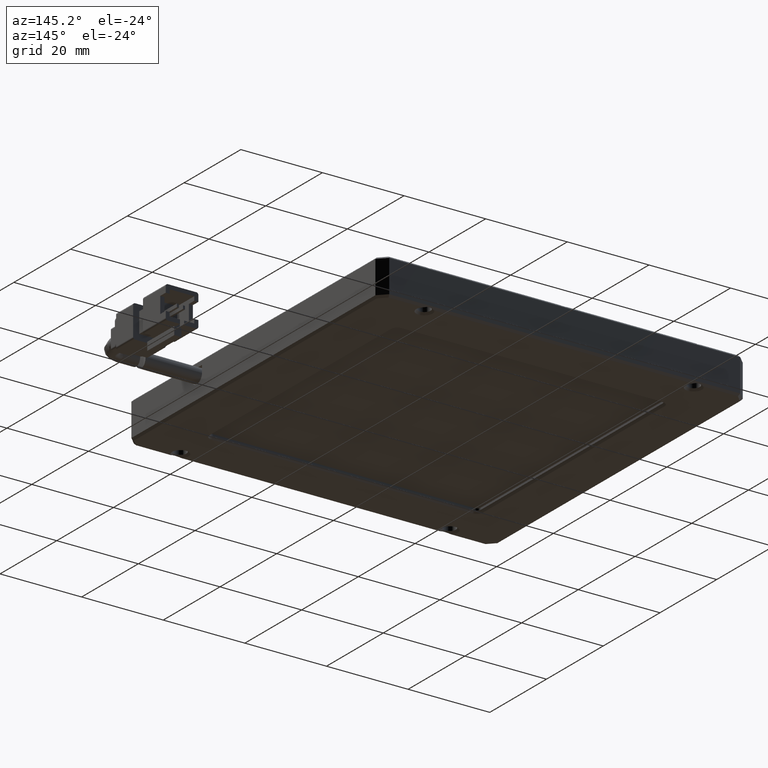
[diagram: clean part render]
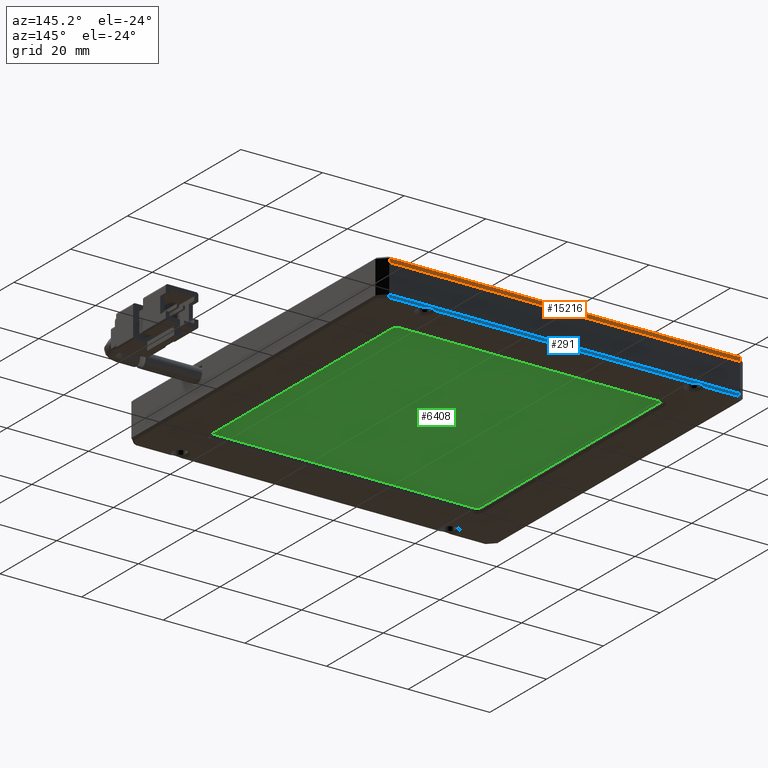
[diagram: same view with three faces highlighted in distinct colors, each labeled with its STEP entity id]
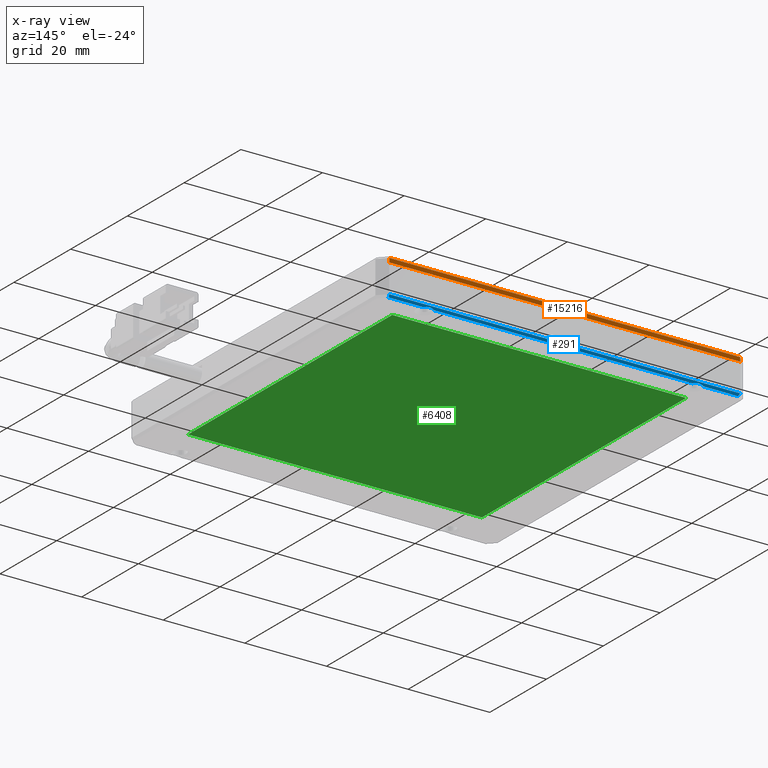
[diagram: x-ray of the same camera — body ghosted, the three highlighted faces saturated]
A machine part, auxiliary view with three faces highlighted in distinct colors.
The next image is the same camera in x-ray (body ghosted, the three faces saturated) — at least one of them is partly hidden behind the body in this view.
Their STEP definitions:

[orange] entity #15216 — the highlighted planar face has unit normal (0, -1, 0).
#2147 = FACE_OUTER_BOUND ( 'NONE', #8830, .T. ) ;
#2522 = EDGE_CURVE ( 'NONE', #14939, #5527, #3638, .T. ) ;
#2695 = DIRECTION ( 'NONE',  ( 0.0000000000000000000, -1.000000000000000000, 0.0000000000000000000 ) ) ;
#3199 = VECTOR ( 'NONE', #8888, 1000.000000000000000 ) ;
#3551 = VERTEX_POINT ( 'NONE', #8979 ) ;
#3638 = LINE ( 'NONE', #8705, #3199 ) ;
#3874 = ORIENTED_EDGE ( 'NONE', *, *, #8291, .T. ) ;
#4049 = CARTESIAN_POINT ( 'NONE',  ( 10.92074074074074600, 72.93999999999999800, 6.000000000000000900 ) ) ;
#4440 = EDGE_CURVE ( 'NONE', #5527, #3551, #12041, .T. ) ;
#5485 = PLANE ( 'NONE',  #7320 ) ;
#5527 = VERTEX_POINT ( 'NONE', #15553 ) ;
#5786 = DIRECTION ( 'NONE',  ( 1.000000000000000000, -0.0000000000000000000, 0.0000000000000000000 ) ) ;
#7320 = AXIS2_PLACEMENT_3D ( 'NONE', #11081, #2695, #12448 ) ;
#7853 = LINE ( 'NONE', #14061, #15171 ) ;
#8291 = EDGE_CURVE ( 'NONE', #14939, #9749, #9532, .T. ) ;
#8496 = ORIENTED_EDGE ( 'NONE', *, *, #4440, .F. ) ;
#8705 = CARTESIAN_POINT ( 'NONE',  ( -77.07925925925924600, 72.93999999999999800, 5.500000000000002700 ) ) ;
#8830 = EDGE_LOOP ( 'NONE', ( #8496, #12368, #3874, #16238 ) ) ;
#8888 = DIRECTION ( 'NONE',  ( -1.000000000000000000, -0.0000000000000000000, -0.0000000000000000000 ) ) ;
#8979 = CARTESIAN_POINT ( 'NONE',  ( -75.07925925925923100, 72.93999999999999800, 4.500000000000000000 ) ) ;
#9532 = LINE ( 'NONE', #4049, #16425 ) ;
#9749 = VERTEX_POINT ( 'NONE', #9768 ) ;
#9768 = CARTESIAN_POINT ( 'NONE',  ( 10.92074074074074600, 72.93999999999999800, 4.500000000000000900 ) ) ;
#11081 = CARTESIAN_POINT ( 'NONE',  ( -77.07925925925924600, 72.93999999999999800, 6.000000000000000900 ) ) ;
#12041 = LINE ( 'NONE', #14567, #15247 ) ;
#12368 = ORIENTED_EDGE ( 'NONE', *, *, #2522, .F. ) ;
#12448 = DIRECTION ( 'NONE',  ( 0.0000000000000000000, -0.0000000000000000000, -1.000000000000000000 ) ) ;
#14061 = CARTESIAN_POINT ( 'NONE',  ( -77.07925925925924600, 72.93999999999999800, 4.500000000000000900 ) ) ;
#14452 = DIRECTION ( 'NONE',  ( 0.0000000000000000000, -0.0000000000000000000, -1.000000000000000000 ) ) ;
#14567 = CARTESIAN_POINT ( 'NONE',  ( -75.07925925925923100, 72.93999999999999800, 6.000000000000000900 ) ) ;
#14579 = CARTESIAN_POINT ( 'NONE',  ( 10.92074074074074600, 72.93999999999999800, 5.500000000000000900 ) ) ;
#14939 = VERTEX_POINT ( 'NONE', #14579 ) ;
#15147 = DIRECTION ( 'NONE',  ( -0.0000000000000000000, -0.0000000000000000000, -1.000000000000000000 ) ) ;
#15171 = VECTOR ( 'NONE', #5786, 1000.000000000000000 ) ;
#15216 = ADVANCED_FACE ( 'NONE', ( #2147 ), #5485, .F. ) ;
#15247 = VECTOR ( 'NONE', #14452, 1000.000000000000000 ) ;
#15553 = CARTESIAN_POINT ( 'NONE',  ( -75.07925925925923100, 72.93999999999999800, 5.500000000000004400 ) ) ;
#15676 = EDGE_CURVE ( 'NONE', #3551, #9749, #7853, .T. ) ;
#16238 = ORIENTED_EDGE ( 'NONE', *, *, #15676, .F. ) ;
#16425 = VECTOR ( 'NONE', #15147, 1000.000000000000000 ) ;

[blue] entity #291 — the highlighted planar face has unit normal (0, 0.7071, -0.7071).
#291 = ADVANCED_FACE ( 'NONE', ( #12871 ), #3465, .T. ) ;
#922 = CARTESIAN_POINT ( 'NONE',  ( -65.52021781110332200, 72.77333333333335500, -2.666666666666651400 ) ) ;
#1823 = ORIENTED_EDGE ( 'NONE', *, *, #13005, .T. ) ;
#2119 = ORIENTED_EDGE ( 'NONE', *, *, #3876, .F. ) ;
#2727 = CARTESIAN_POINT ( 'NONE',  ( 10.92074074074073100, 72.93999999999999800, -2.500000000000003100 ) ) ;
#2816 = CARTESIAN_POINT ( 'NONE',  ( -64.63830070741511200, 72.77333333333335500, -2.666666666666651400 ) ) ;
#3348 = CARTESIAN_POINT ( 'NONE',  ( 0.4797821888966511400, 72.77333333333334100, -2.666666666666661200 ) ) ;
#3405 = LINE ( 'NONE', #9439, #3838 ) ;
#3465 = PLANE ( 'NONE',  #8311 ) ;
#3540 = CARTESIAN_POINT ( 'NONE',  ( 10.71363395955419900, 72.43999999999998400, -2.999999999999996000 ) ) ;
#3564 = CARTESIAN_POINT ( 'NONE',  ( 2.243616396213607500, 72.43999999999999800, -3.000000000000000000 ) ) ;
#3838 = VECTOR ( 'NONE', #17727, 1000.000000000000100 ) ;
#3876 = EDGE_CURVE ( 'NONE', #7587, #8656, #9263, .T. ) ;
#4344 = CARTESIAN_POINT ( 'NONE',  ( -77.07925925925924600, 72.43999999999999800, -3.000000000000000000 ) ) ;
#4379 = EDGE_CURVE ( 'NONE', #7741, #7928, #7606, .T. ) ;
#4482 = CARTESIAN_POINT ( 'NONE',  ( -75.07925925925923100, 72.93999999999999800, -2.500000000000000400 ) ) ;
#4704 = CARTESIAN_POINT ( 'NONE',  ( -77.07925925925924600, 72.43999999999999800, -3.000000000000000000 ) ) ;
#4812 = CARTESIAN_POINT ( 'NONE',  ( -0.4021349147320801800, 72.43999999999999800, -3.000000000000000000 ) ) ;
#5359 = VECTOR ( 'NONE', #7438, 1000.000000000000000 ) ;
#5425 = EDGE_CURVE ( 'NONE', #7741, #9958, #11019, .T. ) ;
#5553 = VECTOR ( 'NONE', #14285, 1000.000000000000000 ) ;
#5609 = ORIENTED_EDGE ( 'NONE', *, *, #10463, .F. ) ;
#5816 = CARTESIAN_POINT ( 'NONE',  ( 10.71363395955418700, 72.43999999999998400, -3.000000000000007100 ) ) ;
#6718 = VERTEX_POINT ( 'NONE', #2727 ) ;
#6854 = VERTEX_POINT ( 'NONE', #4482 ) ;
#6962 = ORIENTED_EDGE ( 'NONE', *, *, #5425, .F. ) ;
#6965 = EDGE_CURVE ( 'NONE', #7587, #9958, #10067, .T. ) ;
#7342 = VECTOR ( 'NONE', #15426, 1000.000000000000000 ) ;
#7435 = ORIENTED_EDGE ( 'NONE', *, *, #4379, .T. ) ;
#7438 = DIRECTION ( 'NONE',  ( 1.000000000000000000, -0.0000000000000000000, 0.0000000000000000000 ) ) ;
#7587 = VERTEX_POINT ( 'NONE', #3564 ) ;
#7606 = B_SPLINE_CURVE_WITH_KNOTS ( 'NONE', 3,
 ( #18108, #2816, #922, #18088 ),
 .UNSPECIFIED., .F., .F.,
 ( 4, 4 ),
 ( 0.0000000000000000000, 1.000000000000000000 ),
 .UNSPECIFIED. ) ;
#7741 = VERTEX_POINT ( 'NONE', #16401 ) ;
#7928 = VERTEX_POINT ( 'NONE', #13007 ) ;
#8258 = EDGE_LOOP ( 'NONE', ( #16829, #6962, #7435, #9626, #1823, #18074, #5609, #2119 ) ) ;
#8311 = AXIS2_PLACEMENT_3D ( 'NONE', #8924, #9057, #9162 ) ;
#8535 = DIRECTION ( 'NONE',  ( 1.000000000000000000, -0.0000000000000000000, 0.0000000000000000000 ) ) ;
#8656 = VERTEX_POINT ( 'NONE', #3540 ) ;
#8901 = VERTEX_POINT ( 'NONE', #11159 ) ;
#8924 = CARTESIAN_POINT ( 'NONE',  ( -77.07925925925924600, 72.93999999999999800, -2.499999999999999600 ) ) ;
#9057 = DIRECTION ( 'NONE',  ( 0.0000000000000000000, 0.7071067811865475700, -0.7071067811865475700 ) ) ;
#9162 = DIRECTION ( 'NONE',  ( 0.0000000000000000000, 0.7071067811865474600, 0.7071067811865474600 ) ) ;
#9263 = LINE ( 'NONE', #15410, #5553 ) ;
#9439 = CARTESIAN_POINT ( 'NONE',  ( -74.87215247807269200, 72.43999999999999800, -3.000000000000000000 ) ) ;
#9626 = ORIENTED_EDGE ( 'NONE', *, *, #16926, .F. ) ;
#9775 = LINE ( 'NONE', #16773, #17152 ) ;
#9958 = VERTEX_POINT ( 'NONE', #13035 ) ;
#10067 = B_SPLINE_CURVE_WITH_KNOTS ( 'NONE', 3,
 ( #13092, #11741, #3348, #4812 ),
 .UNSPECIFIED., .F., .F.,
 ( 4, 4 ),
 ( 0.0000000000000000000, 1.000000000000000000 ),
 .UNSPECIFIED. ) ;
#10082 = VECTOR ( 'NONE', #12704, 999.9999999999998900 ) ;
#10463 = EDGE_CURVE ( 'NONE', #8656, #6718, #16516, .T. ) ;
#11019 = LINE ( 'NONE', #4344, #7342 ) ;
#11159 = CARTESIAN_POINT ( 'NONE',  ( -74.87215247807269200, 72.43999999999998400, -3.000000000000000000 ) ) ;
#11741 = CARTESIAN_POINT ( 'NONE',  ( 1.361699292584867000, 72.77333333333334100, -2.666666666666661200 ) ) ;
#12035 = EDGE_CURVE ( 'NONE', #6854, #6718, #9775, .T. ) ;
#12704 = DIRECTION ( 'NONE',  ( 0.2810846377148155100, 0.6785983445458456700, 0.6785983445458503300 ) ) ;
#12871 = FACE_OUTER_BOUND ( 'NONE', #8258, .T. ) ;
#13005 = EDGE_CURVE ( 'NONE', #8901, #6854, #3405, .T. ) ;
#13007 = CARTESIAN_POINT ( 'NONE',  ( -66.40213491475545000, 72.43999999999999800, -3.000000000000000000 ) ) ;
#13035 = CARTESIAN_POINT ( 'NONE',  ( -0.4021349147320801800, 72.43999999999999800, -3.000000000000000000 ) ) ;
#13092 = CARTESIAN_POINT ( 'NONE',  ( 2.243616396213607500, 72.43999999999999800, -3.000000000000000000 ) ) ;
#14285 = DIRECTION ( 'NONE',  ( 1.000000000000000000, -0.0000000000000000000, 0.0000000000000000000 ) ) ;
#15410 = CARTESIAN_POINT ( 'NONE',  ( -77.07925925925924600, 72.43999999999999800, -3.000000000000000000 ) ) ;
#15426 = DIRECTION ( 'NONE',  ( 1.000000000000000000, -0.0000000000000000000, 0.0000000000000000000 ) ) ;
#15948 = LINE ( 'NONE', #4704, #5359 ) ;
#16401 = CARTESIAN_POINT ( 'NONE',  ( -63.75638360376304100, 72.43999999999999800, -3.000000000000000000 ) ) ;
#16516 = LINE ( 'NONE', #5816, #10082 ) ;
#16773 = CARTESIAN_POINT ( 'NONE',  ( -77.07925925925924600, 72.93999999999999800, -2.499999999999999600 ) ) ;
#16829 = ORIENTED_EDGE ( 'NONE', *, *, #6965, .T. ) ;
#16926 = EDGE_CURVE ( 'NONE', #8901, #7928, #15948, .T. ) ;
#17152 = VECTOR ( 'NONE', #8535, 1000.000000000000000 ) ;
#17727 = DIRECTION ( 'NONE',  ( -0.2810846377148163400, 0.6785983445458477800, 0.6785983445458477800 ) ) ;
#18074 = ORIENTED_EDGE ( 'NONE', *, *, #12035, .T. ) ;
#18088 = CARTESIAN_POINT ( 'NONE',  ( -66.40213491475545000, 72.43999999999999800, -3.000000000000000000 ) ) ;
#18108 = CARTESIAN_POINT ( 'NONE',  ( -63.75638360376304100, 72.43999999999999800, -3.000000000000000000 ) ) ;

[green] entity #6408 — the highlighted planar face has unit normal (0, 0, -1).
#913 = VERTEX_POINT ( 'NONE', #4020 ) ;
#1436 = ORIENTED_EDGE ( 'NONE', *, *, #10536, .T. ) ;
#2098 = ORIENTED_EDGE ( 'NONE', *, *, #17005, .T. ) ;
#2276 = DIRECTION ( 'NONE',  ( -9.637352644315597700E-017, 1.000000000000000000, 0.0000000000000000000 ) ) ;
#3072 = CARTESIAN_POINT ( 'NONE',  ( 3.920740740740766400, 63.93999999999999800, -2.000000000000000000 ) ) ;
#3138 = VECTOR ( 'NONE', #3377, 1000.000000000000000 ) ;
#3181 = LINE ( 'NONE', #12081, #10630 ) ;
#3377 = DIRECTION ( 'NONE',  ( -1.000000000000000000, -9.637352644315595200E-017, 0.0000000000000000000 ) ) ;
#3672 = ORIENTED_EDGE ( 'NONE', *, *, #8695, .T. ) ;
#4020 = CARTESIAN_POINT ( 'NONE',  ( 3.920740740740766400, -8.060000000000007600, -2.000000000000000000 ) ) ;
#4574 = ORIENTED_EDGE ( 'NONE', *, *, #4946, .T. ) ;
#4846 = AXIS2_PLACEMENT_3D ( 'NONE', #6767, #16393, #8153 ) ;
#4946 = EDGE_CURVE ( 'NONE', #12514, #5805, #5622, .T. ) ;
#5437 = CARTESIAN_POINT ( 'NONE',  ( -68.07925925925924600, 63.93999999999998400, -2.000000000000000000 ) ) ;
#5622 = LINE ( 'NONE', #11574, #16198 ) ;
#5805 = VERTEX_POINT ( 'NONE', #17493 ) ;
#5972 = FACE_OUTER_BOUND ( 'NONE', #15594, .T. ) ;
#6003 = DIRECTION ( 'NONE',  ( 9.637352644315595200E-017, -1.000000000000000000, 0.0000000000000000000 ) ) ;
#6408 = ADVANCED_FACE ( 'NONE', ( #5972 ), #8096, .T. ) ;
#6462 = LINE ( 'NONE', #17361, #3138 ) ;
#6767 = CARTESIAN_POINT ( 'NONE',  ( -68.07925925925923100, -8.060000000000014700, -2.000000000000000000 ) ) ;
#8096 = PLANE ( 'NONE',  #4846 ) ;
#8153 = DIRECTION ( 'NONE',  ( -1.000000000000000000, 0.0000000000000000000, -0.0000000000000000000 ) ) ;
#8695 = EDGE_CURVE ( 'NONE', #12085, #12514, #3181, .T. ) ;
#10536 = EDGE_CURVE ( 'NONE', #5805, #913, #12027, .T. ) ;
#10630 = VECTOR ( 'NONE', #2276, 1000.000000000000000 ) ;
#11522 = DIRECTION ( 'NONE',  ( 1.000000000000000000, 1.927470528863119000E-016, 0.0000000000000000000 ) ) ;
#11574 = CARTESIAN_POINT ( 'NONE',  ( 3.920740740740766400, 63.93999999999999800, -2.000000000000000000 ) ) ;
#12027 = LINE ( 'NONE', #3072, #15223 ) ;
#12081 = CARTESIAN_POINT ( 'NONE',  ( -68.07925925925924600, 63.93999999999998400, -2.000000000000000000 ) ) ;
#12085 = VERTEX_POINT ( 'NONE', #15504 ) ;
#12514 = VERTEX_POINT ( 'NONE', #5437 ) ;
#15223 = VECTOR ( 'NONE', #6003, 1000.000000000000000 ) ;
#15504 = CARTESIAN_POINT ( 'NONE',  ( -68.07925925925923100, -8.060000000000007600, -2.000000000000000000 ) ) ;
#15594 = EDGE_LOOP ( 'NONE', ( #1436, #2098, #3672, #4574 ) ) ;
#16198 = VECTOR ( 'NONE', #11522, 1000.000000000000000 ) ;
#16393 = DIRECTION ( 'NONE',  ( 0.0000000000000000000, 0.0000000000000000000, -1.000000000000000000 ) ) ;
#17005 = EDGE_CURVE ( 'NONE', #913, #12085, #6462, .T. ) ;
#17361 = CARTESIAN_POINT ( 'NONE',  ( 3.920740740740773100, -8.060000000000007600, -2.000000000000000000 ) ) ;
#17493 = CARTESIAN_POINT ( 'NONE',  ( 3.920740740740766400, 63.93999999999999800, -2.000000000000000000 ) ) ;